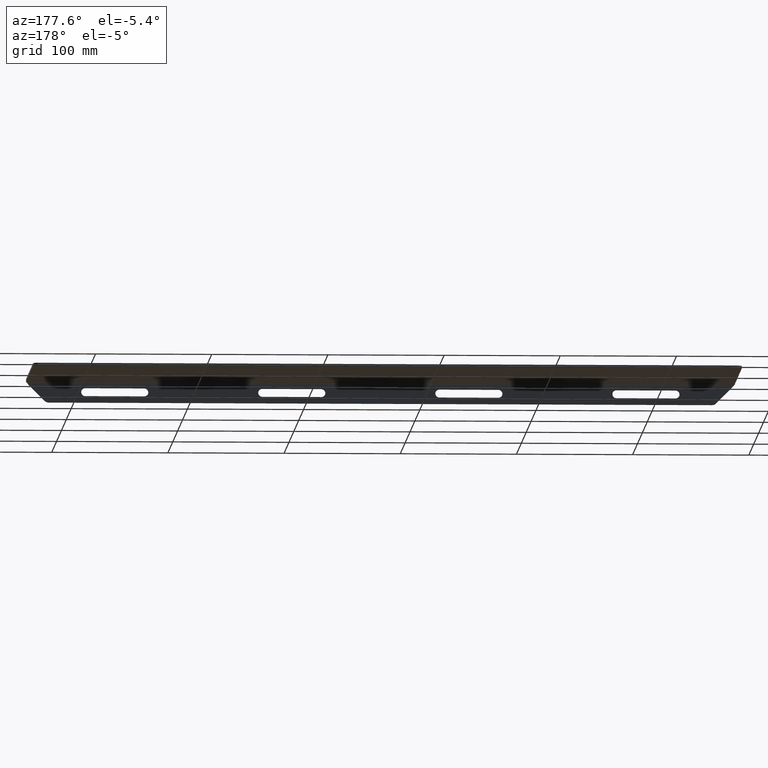
[diagram: clean part render]
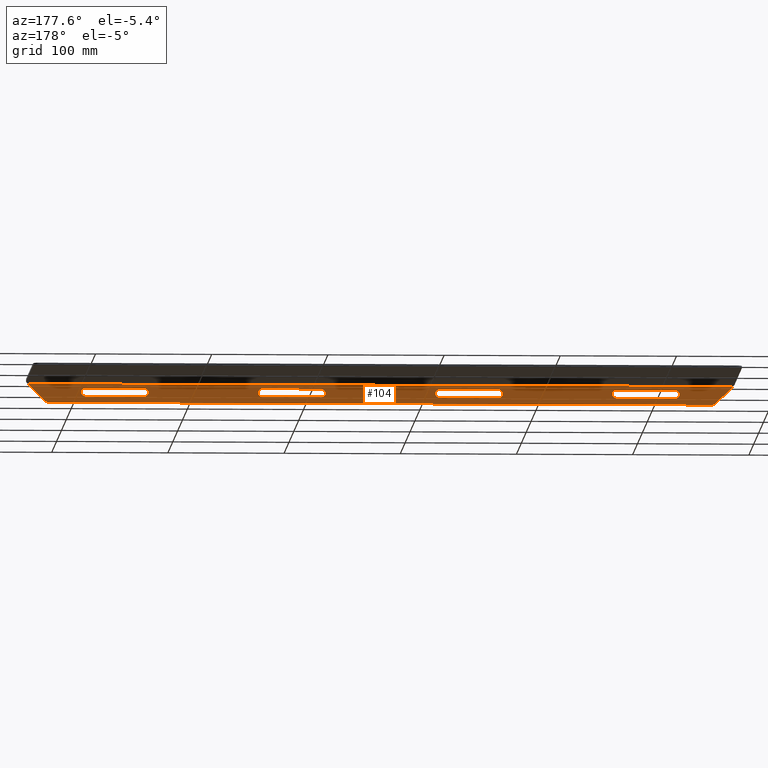
[diagram: same view with one face highlighted and labeled with its STEP entity id]
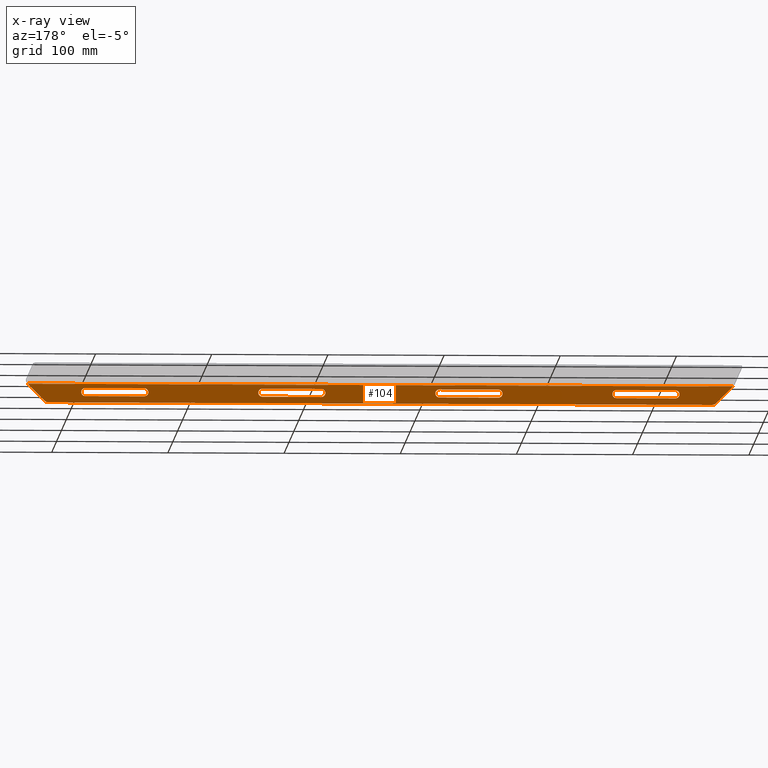
[diagram: x-ray of the same camera — body ghosted, the highlighted face saturated]
A machine part, auxiliary view. The second image highlights one B-rep face of the part: STEP entity #104.
The next image is the same camera in x-ray: the body ghosted, the highlighted face saturated — about 0% of this face is hidden behind the body in this view.
In plain terms, the highlighted planar face has unit normal (-0, 1, 0).
Its self-contained STEP definition (entity closure, byte-faithful):
#3 = VERTEX_POINT ( 'NONE', #905 ) ;
#13 = VECTOR ( 'NONE', #1139, 1000.000000000000000 ) ;
#25 = VERTEX_POINT ( 'NONE', #1021 ) ;
#28 = CARTESIAN_POINT ( 'NONE',  ( 333.6318831417617616, 256.4215033607171108, 452.5621721913454962 ) ) ;
#29 = DIRECTION ( 'NONE',  ( 0.000000000000000000, 0.000000000000000000, -1.000000000000000000 ) ) ;
#34 = CIRCLE ( 'NONE', #166, 3.500000000000003109 ) ;
#41 = DIRECTION ( 'NONE',  ( 0.000000000000000000, 0.000000000000000000, 1.000000000000000000 ) ) ;
#60 = EDGE_CURVE ( 'NONE', #308, #25, #283, .T. ) ;
#75 = AXIS2_PLACEMENT_3D ( 'NONE', #1050, #1280, #755 ) ;
#82 = EDGE_CURVE ( 'NONE', #254, #826, #169, .T. ) ;
#86 = FACE_BOUND ( 'NONE', #535, .T. ) ;
#90 = VERTEX_POINT ( 'NONE', #1013 ) ;
#92 = CARTESIAN_POINT ( 'NONE',  ( 181.2318831417616991, 256.4215033607171108, 459.5621721913454962 ) ) ;
#101 = ORIENTED_EDGE ( 'NONE', *, *, #626, .F. ) ;
#104 = ADVANCED_FACE ( 'NONE', ( #520, #86, #1301, #188, #1417 ), #1409, .T. ) ;
#115 = EDGE_CURVE ( 'NONE', #561, #1400, #144, .T. ) ;
#132 = ORIENTED_EDGE ( 'NONE', *, *, #1357, .F. ) ;
#133 = ORIENTED_EDGE ( 'NONE', *, *, #1365, .T. ) ;
#140 = EDGE_CURVE ( 'NONE', #456, #635, #578, .T. ) ;
#144 = CIRCLE ( 'NONE', #556, 3.500000000000003109 ) ;
#145 = AXIS2_PLACEMENT_3D ( 'NONE', #319, #1115, #565 ) ;
#147 = VERTEX_POINT ( 'NONE', #92 ) ;
#154 = VERTEX_POINT ( 'NONE', #747 ) ;
#155 = DIRECTION ( 'NONE',  ( -1.000000000000000000, -0.000000000000000000, -0.000000000000000000 ) ) ;
#163 = CARTESIAN_POINT ( 'NONE',  ( 521.0034560170153100, 256.4215033607171108, 448.5266382854127301 ) ) ;
#166 = AXIS2_PLACEMENT_3D ( 'NONE', #353, #1225, #29 ) ;
#169 = LINE ( 'NONE', #472, #415 ) ;
#188 = FACE_BOUND ( 'NONE', #951, .T. ) ;
#203 = CARTESIAN_POINT ( 'NONE',  ( -71.12167024883164856, 256.4215033607171108, 462.7086188007522765 ) ) ;
#213 = CARTESIAN_POINT ( 'NONE',  ( -21.96811685823831084, 256.4215033607171108, 456.0621721913454962 ) ) ;
#221 = CARTESIAN_POINT ( 'NONE',  ( 535.5389899229481898, 256.4215033607171108, 463.0621721913454962 ) ) ;
#227 = CARTESIAN_POINT ( 'NONE',  ( -71.35831157702234862, 256.4215033607168834, 462.9433894171615975 ) ) ;
#230 = EDGE_LOOP ( 'NONE', ( #309, #1231, #132, #631 ) ) ;
#238 = LINE ( 'NONE', #1332, #1223 ) ;
#248 = VERTEX_POINT ( 'NONE', #1371 ) ;
#254 = VERTEX_POINT ( 'NONE', #699 ) ;
#257 = AXIS2_PLACEMENT_3D ( 'NONE', #1062, #1168, #402 ) ;
#280 = CARTESIAN_POINT ( 'NONE',  ( 536.8318831417617503, 256.4215033607171108, 463.0621721913454962 ) ) ;
#283 = LINE ( 'NONE', #707, #1057 ) ;
#286 = CARTESIAN_POINT ( 'NONE',  ( 535.1854365323557658, 256.4215033607174519, 462.7086188007530154 ) ) ;
#287 = B_SPLINE_CURVE_WITH_KNOTS ( 'NONE', 3,
 ( #203, #1217, #227, #1337 ),
 .UNSPECIFIED., .F., .F.,
 ( 4, 4 ),
 ( 0.000000000000000000, 0.0004999999999988893537 ),
 .UNSPECIFIED. ) ;
#292 = CARTESIAN_POINT ( 'NONE',  ( -53.40415582755897361, 256.4215033607171108, 447.0621721913454962 ) ) ;
#295 = VERTEX_POINT ( 'NONE', #1236 ) ;
#302 = VECTOR ( 'NONE', #1234, 1000.000000000000000 ) ;
#308 = VERTEX_POINT ( 'NONE', #1245 ) ;
#309 = ORIENTED_EDGE ( 'NONE', *, *, #1090, .F. ) ;
#315 = DIRECTION ( 'NONE',  ( 0.000000000000000000, 1.000000000000000000, 0.000000000000000000 ) ) ;
#316 = EDGE_LOOP ( 'NONE', ( #1302, #1177, #371, #1232 ) ) ;
#319 = CARTESIAN_POINT ( 'NONE',  ( 28.83188314176168987, 256.4215033607171108, 456.0621721913454962 ) ) ;
#334 = EDGE_CURVE ( 'NONE', #540, #295, #803, .T. ) ;
#335 = DIRECTION ( 'NONE',  ( 0.7071067811865501263, 0.000000000000000000, -0.7071067811865450192 ) ) ;
#336 = CARTESIAN_POINT ( 'NONE',  ( -71.12167024883164856, 256.4215033607171108, 462.7086188007522765 ) ) ;
#343 = CARTESIAN_POINT ( 'NONE',  ( 517.4679221110826575, 256.4215033607171108, 452.0621721913454962 ) ) ;
#347 = CIRCLE ( 'NONE', #902, 5.000000000000004441 ) ;
#351 = CIRCLE ( 'NONE', #418, 3.500000000000003109 ) ;
#353 = CARTESIAN_POINT ( 'NONE',  ( 486.0318831417617389, 256.4215033607171108, 456.0621721913454962 ) ) ;
#356 = CARTESIAN_POINT ( 'NONE',  ( 517.4679221110826575, 256.4215033607171108, 447.0621721913454962 ) ) ;
#359 = LINE ( 'NONE', #365, #13 ) ;
#365 = CARTESIAN_POINT ( 'NONE',  ( 282.8318831417618071, 256.4215033607171108, 452.5621721913454962 ) ) ;
#370 = EDGE_CURVE ( 'NONE', #669, #90, #394, .T. ) ;
#371 = ORIENTED_EDGE ( 'NONE', *, *, #1209, .F. ) ;
#374 = DIRECTION ( 'NONE',  ( 1.000000000000000000, 0.000000000000000000, -1.878145495644180593E-16 ) ) ;
#377 = AXIS2_PLACEMENT_3D ( 'NONE', #1029, #921, #41 ) ;
#389 = CARTESIAN_POINT ( 'NONE',  ( 535.3032876625532026, 256.4215033607171108, 462.8264699309505090 ) ) ;
#394 = LINE ( 'NONE', #825, #466 ) ;
#395 = AXIS2_PLACEMENT_3D ( 'NONE', #943, #399, #1308 ) ;
#399 = DIRECTION ( 'NONE',  ( -0.000000000000000000, 1.000000000000000000, 0.000000000000000000 ) ) ;
#402 = DIRECTION ( 'NONE',  ( 0.000000000000000000, 0.000000000000000000, -1.000000000000000000 ) ) ;
#403 = DIRECTION ( 'NONE',  ( 0.000000000000000000, 0.000000000000000000, 1.000000000000000000 ) ) ;
#408 = CARTESIAN_POINT ( 'NONE',  ( 28.83188314176168987, 256.4215033607171108, 459.5621721913454962 ) ) ;
#414 = CIRCLE ( 'NONE', #257, 3.500000000000003109 ) ;
#415 = VECTOR ( 'NONE', #1042, 1000.000000000000000 ) ;
#416 = CARTESIAN_POINT ( 'NONE',  ( -53.40415582755922230, 256.4215033607171108, 452.0621721913454962 ) ) ;
#418 = AXIS2_PLACEMENT_3D ( 'NONE', #459, #932, #1353 ) ;
#428 = EDGE_LOOP ( 'NONE', ( #1113, #432, #445, #863, #733, #1427, #101, #133 ) ) ;
#432 = ORIENTED_EDGE ( 'NONE', *, *, #140, .T. ) ;
#445 = ORIENTED_EDGE ( 'NONE', *, *, #927, .F. ) ;
#446 = DIRECTION ( 'NONE',  ( 1.000000000000000000, 0.000000000000000000, 0.000000000000000000 ) ) ;
#452 = CARTESIAN_POINT ( 'NONE',  ( 486.0318831417617389, 256.4215033607171108, 452.5621721913454962 ) ) ;
#456 = VERTEX_POINT ( 'NONE', #292 ) ;
#459 = CARTESIAN_POINT ( 'NONE',  ( 181.2318831417616991, 256.4215033607171108, 456.0621721913454962 ) ) ;
#466 = VECTOR ( 'NONE', #1061, 1000.000000000000000 ) ;
#472 = CARTESIAN_POINT ( 'NONE',  ( 130.4318831417616877, 256.4215033607171108, 452.5621721913454962 ) ) ;
#473 = ORIENTED_EDGE ( 'NONE', *, *, #82, .F. ) ;
#493 = AXIS2_PLACEMENT_3D ( 'NONE', #416, #1048, #403 ) ;
#500 = EDGE_CURVE ( 'NONE', #540, #248, #967, .T. ) ;
#520 = FACE_BOUND ( 'NONE', #316, .T. ) ;
#521 = VERTEX_POINT ( 'NONE', #336 ) ;
#523 = ORIENTED_EDGE ( 'NONE', *, *, #615, .F. ) ;
#528 = VECTOR ( 'NONE', #1046, 1000.000000000000000 ) ;
#535 = EDGE_LOOP ( 'NONE', ( #1248, #473, #1028, #686 ) ) ;
#540 = VERTEX_POINT ( 'NONE', #221 ) ;
#552 = CARTESIAN_POINT ( 'NONE',  ( 282.8318831417618071, 256.4215033607171108, 459.5621721913454962 ) ) ;
#556 = AXIS2_PLACEMENT_3D ( 'NONE', #959, #315, #950 ) ;
#558 = LINE ( 'NONE', #874, #1298 ) ;
#561 = VERTEX_POINT ( 'NONE', #995 ) ;
#565 = DIRECTION ( 'NONE',  ( 0.000000000000000000, 0.000000000000000000, -1.000000000000000000 ) ) ;
#578 = CIRCLE ( 'NONE', #493, 5.000000000000004441 ) ;
#582 = EDGE_CURVE ( 'NONE', #1097, #1199, #558, .T. ) ;
#591 = CARTESIAN_POINT ( 'NONE',  ( 130.4318831417616877, 256.4215033607171108, 452.5621721913454962 ) ) ;
#592 = ORIENTED_EDGE ( 'NONE', *, *, #603, .F. ) ;
#603 = EDGE_CURVE ( 'NONE', #1185, #308, #1273, .T. ) ;
#615 = EDGE_CURVE ( 'NONE', #25, #154, #1256, .T. ) ;
#626 = EDGE_CURVE ( 'NONE', #1095, #295, #1306, .T. ) ;
#631 = ORIENTED_EDGE ( 'NONE', *, *, #582, .F. ) ;
#635 = VERTEX_POINT ( 'NONE', #1196 ) ;
#640 = CIRCLE ( 'NONE', #75, 3.500000000000003109 ) ;
#646 = EDGE_CURVE ( 'NONE', #521, #248, #287, .T. ) ;
#669 = VERTEX_POINT ( 'NONE', #452 ) ;
#686 = ORIENTED_EDGE ( 'NONE', *, *, #767, .F. ) ;
#695 = EDGE_CURVE ( 'NONE', #147, #254, #351, .T. ) ;
#696 = VECTOR ( 'NONE', #774, 1000.000000000000114 ) ;
#699 = CARTESIAN_POINT ( 'NONE',  ( 181.2318831417616991, 256.4215033607171108, 452.5621721913454962 ) ) ;
#707 = CARTESIAN_POINT ( 'NONE',  ( -21.96811685823831084, 256.4215033607171108, 452.5621721913454962 ) ) ;
#715 = VERTEX_POINT ( 'NONE', #28 ) ;
#733 = ORIENTED_EDGE ( 'NONE', *, *, #500, .F. ) ;
#740 = CARTESIAN_POINT ( 'NONE',  ( 486.0318831417617389, 256.4215033607171108, 459.5621721913454962 ) ) ;
#747 = CARTESIAN_POINT ( 'NONE',  ( -21.96811685823823979, 256.4215033607171108, 459.5621721913454962 ) ) ;
#755 = DIRECTION ( 'NONE',  ( 0.000000000000000000, 0.000000000000000000, 1.000000000000000000 ) ) ;
#767 = EDGE_CURVE ( 'NONE', #1333, #147, #788, .T. ) ;
#773 = EDGE_CURVE ( 'NONE', #1400, #3, #1024, .T. ) ;
#774 = DIRECTION ( 'NONE',  ( 0.7071067811865501263, -0.000000000000000000, 0.7071067811865450192 ) ) ;
#788 = LINE ( 'NONE', #1265, #1112 ) ;
#794 = CARTESIAN_POINT ( 'NONE',  ( 536.8318831417617503, 256.4215033607171108, 447.0621721913454962 ) ) ;
#803 = B_SPLINE_CURVE_WITH_KNOTS ( 'NONE', 3,
 ( #1155, #1163, #389, #286 ),
 .UNSPECIFIED., .F., .F.,
 ( 4, 4 ),
 ( 0.000000000000000000, 0.0004999999999988794875 ),
 .UNSPECIFIED. ) ;
#810 = VECTOR ( 'NONE', #155, 1000.000000000000000 ) ;
#825 = CARTESIAN_POINT ( 'NONE',  ( 435.2318831417617844, 256.4215033607171108, 452.5621721913454962 ) ) ;
#826 = VERTEX_POINT ( 'NONE', #591 ) ;
#863 = ORIENTED_EDGE ( 'NONE', *, *, #646, .T. ) ;
#874 = CARTESIAN_POINT ( 'NONE',  ( 435.2318831417617844, 256.4215033607171108, 459.5621721913454962 ) ) ;
#894 = DIRECTION ( 'NONE',  ( 0.000000000000000000, 0.000000000000000000, 1.000000000000000000 ) ) ;
#902 = AXIS2_PLACEMENT_3D ( 'NONE', #343, #1323, #894 ) ;
#905 = CARTESIAN_POINT ( 'NONE',  ( 333.6318831417617616, 256.4215033607171108, 459.5621721913454962 ) ) ;
#921 = DIRECTION ( 'NONE',  ( 0.000000000000000000, 1.000000000000000000, 0.000000000000000000 ) ) ;
#926 = DIRECTION ( 'NONE',  ( -1.000000000000000000, -0.000000000000000000, -0.000000000000000000 ) ) ;
#927 = EDGE_CURVE ( 'NONE', #521, #635, #1327, .T. ) ;
#932 = DIRECTION ( 'NONE',  ( 0.000000000000000000, 1.000000000000000000, 0.000000000000000000 ) ) ;
#943 = CARTESIAN_POINT ( 'NONE',  ( 536.8318831417617503, 256.4215033607171108, 467.0621721913454962 ) ) ;
#950 = DIRECTION ( 'NONE',  ( 0.000000000000000000, 0.000000000000000000, 1.000000000000000000 ) ) ;
#951 = EDGE_LOOP ( 'NONE', ( #523, #1099, #592, #1038 ) ) ;
#955 = EDGE_CURVE ( 'NONE', #715, #561, #359, .T. ) ;
#959 = CARTESIAN_POINT ( 'NONE',  ( 282.8318831417618071, 256.4215033607171108, 456.0621721913454962 ) ) ;
#967 = LINE ( 'NONE', #280, #528 ) ;
#992 = CIRCLE ( 'NONE', #377, 3.500000000000003109 ) ;
#995 = CARTESIAN_POINT ( 'NONE',  ( 282.8318831417618071, 256.4215033607171108, 452.5621721913454962 ) ) ;
#1013 = CARTESIAN_POINT ( 'NONE',  ( 435.2318831417617844, 256.4215033607171108, 452.5621721913454962 ) ) ;
#1017 = EDGE_CURVE ( 'NONE', #1129, #456, #1352, .T. ) ;
#1021 = CARTESIAN_POINT ( 'NONE',  ( -21.96811685823831084, 256.4215033607171108, 452.5621721913454962 ) ) ;
#1024 = LINE ( 'NONE', #1260, #302 ) ;
#1028 = ORIENTED_EDGE ( 'NONE', *, *, #695, .F. ) ;
#1029 = CARTESIAN_POINT ( 'NONE',  ( 130.4318831417616877, 256.4215033607171108, 456.0621721913454962 ) ) ;
#1036 = EDGE_CURVE ( 'NONE', #826, #1333, #992, .T. ) ;
#1038 = ORIENTED_EDGE ( 'NONE', *, *, #1120, .F. ) ;
#1042 = DIRECTION ( 'NONE',  ( -1.000000000000000000, -0.000000000000000000, 1.707404996040164265E-16 ) ) ;
#1046 = DIRECTION ( 'NONE',  ( -1.000000000000000000, -0.000000000000000000, -0.000000000000000000 ) ) ;
#1048 = DIRECTION ( 'NONE',  ( -0.000000000000000000, 1.000000000000000000, 0.000000000000000000 ) ) ;
#1050 = CARTESIAN_POINT ( 'NONE',  ( 435.2318831417617844, 256.4215033607171108, 456.0621721913454962 ) ) ;
#1057 = VECTOR ( 'NONE', #926, 1000.000000000000000 ) ;
#1059 = VECTOR ( 'NONE', #335, 1000.000000000000114 ) ;
#1061 = DIRECTION ( 'NONE',  ( -1.000000000000000000, -0.000000000000000000, -0.000000000000000000 ) ) ;
#1062 = CARTESIAN_POINT ( 'NONE',  ( 333.6318831417617616, 256.4215033607171108, 456.0621721913454962 ) ) ;
#1083 = DIRECTION ( 'NONE',  ( 0.000000000000000000, 0.000000000000000000, 1.000000000000000000 ) ) ;
#1090 = EDGE_CURVE ( 'NONE', #90, #1097, #640, .T. ) ;
#1095 = VERTEX_POINT ( 'NONE', #163 ) ;
#1097 = VERTEX_POINT ( 'NONE', #1161 ) ;
#1099 = ORIENTED_EDGE ( 'NONE', *, *, #60, .F. ) ;
#1105 = CARTESIAN_POINT ( 'NONE',  ( 230.6783297511706508, 256.4215033607171108, 160.9086188007521798 ) ) ;
#1112 = VECTOR ( 'NONE', #374, 1000.000000000000000 ) ;
#1113 = ORIENTED_EDGE ( 'NONE', *, *, #1017, .T. ) ;
#1115 = DIRECTION ( 'NONE',  ( 0.000000000000000000, 1.000000000000000000, -0.000000000000000000 ) ) ;
#1120 = EDGE_CURVE ( 'NONE', #154, #1185, #238, .T. ) ;
#1129 = VERTEX_POINT ( 'NONE', #356 ) ;
#1139 = DIRECTION ( 'NONE',  ( -1.000000000000000000, -0.000000000000000000, 1.707404996040165991E-16 ) ) ;
#1155 = CARTESIAN_POINT ( 'NONE',  ( 535.5389899229481898, 256.4215033607171108, 463.0621721913454962 ) ) ;
#1161 = CARTESIAN_POINT ( 'NONE',  ( 435.2318831417617844, 256.4215033607171108, 459.5621721913454962 ) ) ;
#1163 = CARTESIAN_POINT ( 'NONE',  ( 535.4220778605464375, 256.4215033607171108, 462.9433894171624502 ) ) ;
#1168 = DIRECTION ( 'NONE',  ( 0.000000000000000000, 1.000000000000000000, -0.000000000000000000 ) ) ;
#1177 = ORIENTED_EDGE ( 'NONE', *, *, #955, .F. ) ;
#1185 = VERTEX_POINT ( 'NONE', #408 ) ;
#1196 = CARTESIAN_POINT ( 'NONE',  ( -56.93968973349200269, 256.4215033607171108, 448.5266382854127301 ) ) ;
#1199 = VERTEX_POINT ( 'NONE', #740 ) ;
#1205 = DIRECTION ( 'NONE',  ( 0.000000000000000000, 1.000000000000000000, 0.000000000000000000 ) ) ;
#1209 = EDGE_CURVE ( 'NONE', #3, #715, #414, .T. ) ;
#1217 = CARTESIAN_POINT ( 'NONE',  ( -71.23952137902912796, 256.4215033607171108, 462.8264699309497132 ) ) ;
#1223 = VECTOR ( 'NONE', #1349, 1000.000000000000000 ) ;
#1225 = DIRECTION ( 'NONE',  ( 0.000000000000000000, 1.000000000000000000, -0.000000000000000000 ) ) ;
#1231 = ORIENTED_EDGE ( 'NONE', *, *, #370, .F. ) ;
#1232 = ORIENTED_EDGE ( 'NONE', *, *, #773, .F. ) ;
#1234 = DIRECTION ( 'NONE',  ( 1.000000000000000000, 0.000000000000000000, -1.878145495644182565E-16 ) ) ;
#1236 = CARTESIAN_POINT ( 'NONE',  ( 535.1854365323557658, 256.4215033607174519, 462.7086188007530154 ) ) ;
#1245 = CARTESIAN_POINT ( 'NONE',  ( 28.83188314176168987, 256.4215033607171108, 452.5621721913454962 ) ) ;
#1248 = ORIENTED_EDGE ( 'NONE', *, *, #1036, .F. ) ;
#1256 = CIRCLE ( 'NONE', #1374, 3.500000000000003109 ) ;
#1260 = CARTESIAN_POINT ( 'NONE',  ( 282.8318831417618071, 256.4215033607171108, 459.5621721913454962 ) ) ;
#1265 = CARTESIAN_POINT ( 'NONE',  ( 130.4318831417616877, 256.4215033607171108, 459.5621721913454962 ) ) ;
#1273 = CIRCLE ( 'NONE', #145, 3.500000000000003109 ) ;
#1280 = DIRECTION ( 'NONE',  ( 0.000000000000000000, 1.000000000000000000, 0.000000000000000000 ) ) ;
#1298 = VECTOR ( 'NONE', #446, 1000.000000000000000 ) ;
#1301 = FACE_BOUND ( 'NONE', #230, .T. ) ;
#1302 = ORIENTED_EDGE ( 'NONE', *, *, #115, .F. ) ;
#1306 = LINE ( 'NONE', #1423, #696 ) ;
#1308 = DIRECTION ( 'NONE',  ( 0.000000000000000000, -0.000000000000000000, 1.000000000000000000 ) ) ;
#1323 = DIRECTION ( 'NONE',  ( -0.000000000000000000, 1.000000000000000000, 0.000000000000000000 ) ) ;
#1327 = LINE ( 'NONE', #1105, #1059 ) ;
#1332 = CARTESIAN_POINT ( 'NONE',  ( -21.96811685823831084, 256.4215033607171108, 459.5621721913454962 ) ) ;
#1333 = VERTEX_POINT ( 'NONE', #1346 ) ;
#1337 = CARTESIAN_POINT ( 'NONE',  ( -71.47522363942412937, 256.4215033607169403, 463.0621721913447573 ) ) ;
#1346 = CARTESIAN_POINT ( 'NONE',  ( 130.4318831417616877, 256.4215033607171108, 459.5621721913454962 ) ) ;
#1349 = DIRECTION ( 'NONE',  ( 1.000000000000000000, 0.000000000000000000, 0.000000000000000000 ) ) ;
#1352 = LINE ( 'NONE', #794, #810 ) ;
#1353 = DIRECTION ( 'NONE',  ( 0.000000000000000000, 0.000000000000000000, 1.000000000000000000 ) ) ;
#1357 = EDGE_CURVE ( 'NONE', #1199, #669, #34, .T. ) ;
#1365 = EDGE_CURVE ( 'NONE', #1095, #1129, #347, .T. ) ;
#1371 = CARTESIAN_POINT ( 'NONE',  ( -71.47522363942412937, 256.4215033607169403, 463.0621721913447573 ) ) ;
#1374 = AXIS2_PLACEMENT_3D ( 'NONE', #213, #1205, #1083 ) ;
#1400 = VERTEX_POINT ( 'NONE', #552 ) ;
#1409 = PLANE ( 'NONE',  #395 ) ;
#1417 = FACE_OUTER_BOUND ( 'NONE', #428, .T. ) ;
#1423 = CARTESIAN_POINT ( 'NONE',  ( 538.1854365323549700, 256.4215033607171108, 465.7086188007522196 ) ) ;
#1427 = ORIENTED_EDGE ( 'NONE', *, *, #334, .T. ) ;